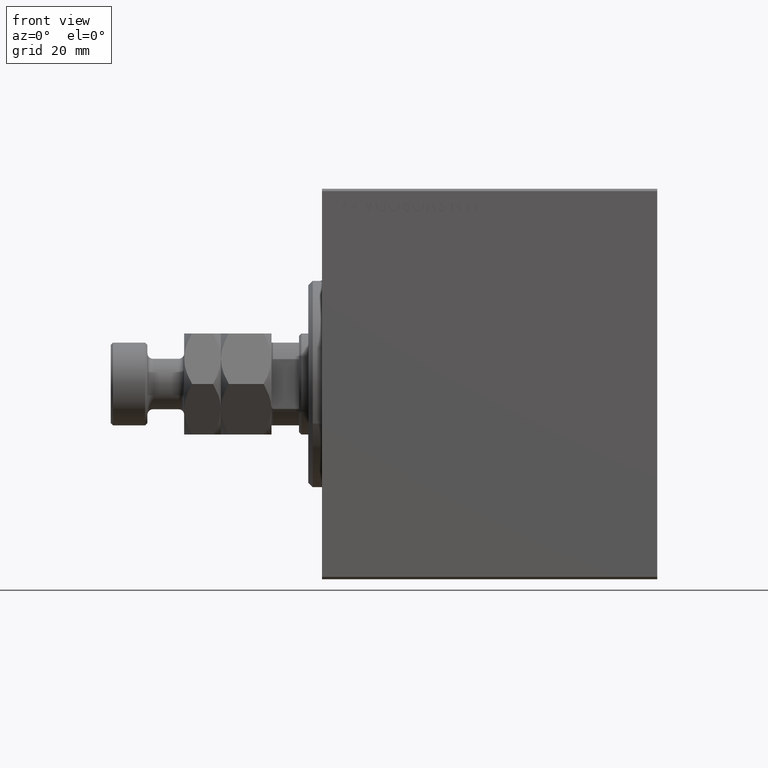
[diagram: clean part render]
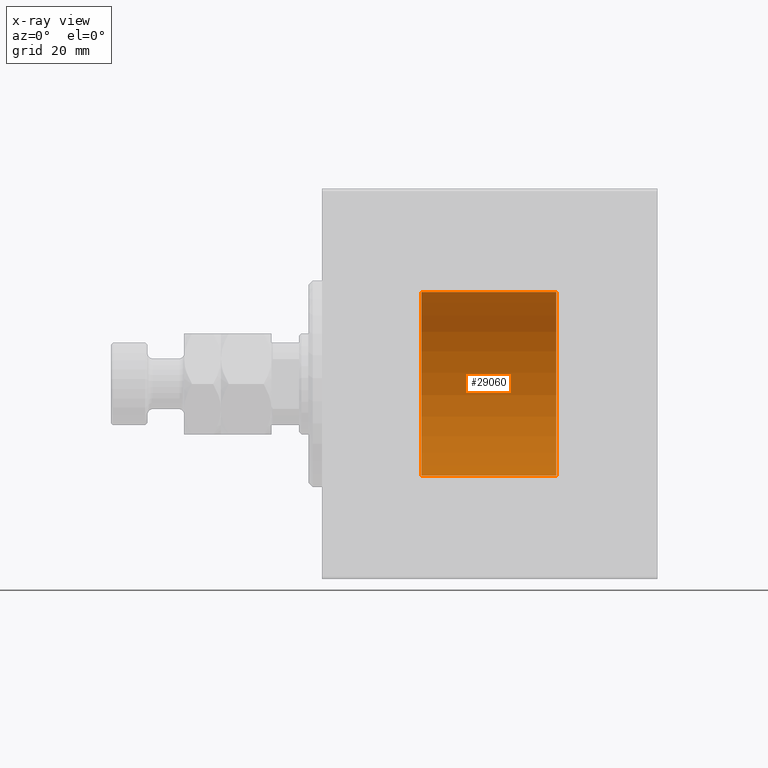
[diagram: x-ray — body ghosted, one internal face saturated and labeled with its STEP entity id]
A machine part, front view, then the same camera in x-ray: the body is ghosted and one INTERNAL B-rep face — a face not visible from any outside direction — is saturated and labeled: STEP entity #29060.
In plain terms, the highlighted cylindrical surface (partial cylindrical patch) has radius 20 mm, axis along (-1, -0, -0).
Its self-contained STEP definition (entity closure, byte-faithful):
#487 = CARTESIAN_POINT ( 'NONE',  ( 21.60000000000000142, 0.000000000000000000, 0.000000000000000000 ) ) ;
#685 = CARTESIAN_POINT ( 'NONE',  ( 51.00000000000000000, 2.449293598294706513E-15, -20.00000000000000000 ) ) ;
#5109 = CARTESIAN_POINT ( 'NONE',  ( 51.00000000000000000, 0.000000000000000000, 0.000000000000000000 ) ) ;
#5329 = CARTESIAN_POINT ( 'NONE',  ( 51.00000000000000000, 2.449293598294706513E-15, -20.00000000000000000 ) ) ;
#5980 = CARTESIAN_POINT ( 'NONE',  ( 21.60000000000000142, 0.000000000000000000, 20.00000000000000000 ) ) ;
#6765 = ORIENTED_EDGE ( 'NONE', *, *, #31878, .F. ) ;
#7360 = DIRECTION ( 'NONE',  ( -1.000000000000000000, -0.000000000000000000, -0.000000000000000000 ) ) ;
#8726 = CYLINDRICAL_SURFACE ( 'NONE', #33543, 20.00000000000000000 ) ;
#9854 = DIRECTION ( 'NONE',  ( 0.000000000000000000, 0.000000000000000000, 1.000000000000000000 ) ) ;
#10135 = VERTEX_POINT ( 'NONE', #25947 ) ;
#10578 = LINE ( 'NONE', #685, #17081 ) ;
#10871 = CIRCLE ( 'NONE', #35076, 20.00000000000000000 ) ;
#11931 = CARTESIAN_POINT ( 'NONE',  ( 51.00000000000000000, 0.000000000000000000, 0.000000000000000000 ) ) ;
#12794 = EDGE_CURVE ( 'NONE', #14581, #10135, #10578, .T. ) ;
#14581 = VERTEX_POINT ( 'NONE', #5329 ) ;
#14772 = EDGE_CURVE ( 'NONE', #23444, #18488, #35614, .T. ) ;
#16114 = DIRECTION ( 'NONE',  ( 0.000000000000000000, 0.000000000000000000, 1.000000000000000000 ) ) ;
#17081 = VECTOR ( 'NONE', #7360, 1000.000000000000000 ) ;
#17640 = DIRECTION ( 'NONE',  ( -1.000000000000000000, 0.000000000000000000, 0.000000000000000000 ) ) ;
#18354 = CARTESIAN_POINT ( 'NONE',  ( 51.00000000000000000, 0.000000000000000000, 20.00000000000000000 ) ) ;
#18488 = VERTEX_POINT ( 'NONE', #5980 ) ;
#19107 = DIRECTION ( 'NONE',  ( -1.000000000000000000, 0.000000000000000000, 0.000000000000000000 ) ) ;
#19851 = ORIENTED_EDGE ( 'NONE', *, *, #14772, .T. ) ;
#20419 = EDGE_CURVE ( 'NONE', #18488, #10135, #39897, .T. ) ;
#22296 = AXIS2_PLACEMENT_3D ( 'NONE', #487, #17640, #9854 ) ;
#22703 = DIRECTION ( 'NONE',  ( 0.000000000000000000, 0.000000000000000000, 1.000000000000000000 ) ) ;
#23444 = VERTEX_POINT ( 'NONE', #18354 ) ;
#25482 = EDGE_LOOP ( 'NONE', ( #42076, #6765, #19851, #39211 ) ) ;
#25730 = CARTESIAN_POINT ( 'NONE',  ( 51.00000000000000000, 0.000000000000000000, 20.00000000000000000 ) ) ;
#25947 = CARTESIAN_POINT ( 'NONE',  ( 21.60000000000000142, 2.449293598294706513E-15, -20.00000000000000000 ) ) ;
#26150 = FACE_OUTER_BOUND ( 'NONE', #25482, .T. ) ;
#29060 = ADVANCED_FACE ( 'NONE', ( #26150 ), #8726, .F. ) ;
#31878 = EDGE_CURVE ( 'NONE', #23444, #14581, #10871, .T. ) ;
#32396 = DIRECTION ( 'NONE',  ( -1.000000000000000000, -0.000000000000000000, -0.000000000000000000 ) ) ;
#33543 = AXIS2_PLACEMENT_3D ( 'NONE', #11931, #44058, #22703 ) ;
#35076 = AXIS2_PLACEMENT_3D ( 'NONE', #5109, #19107, #16114 ) ;
#35436 = VECTOR ( 'NONE', #32396, 1000.000000000000000 ) ;
#35614 = LINE ( 'NONE', #25730, #35436 ) ;
#39211 = ORIENTED_EDGE ( 'NONE', *, *, #20419, .T. ) ;
#39897 = CIRCLE ( 'NONE', #22296, 20.00000000000000000 ) ;
#42076 = ORIENTED_EDGE ( 'NONE', *, *, #12794, .F. ) ;
#44058 = DIRECTION ( 'NONE',  ( -1.000000000000000000, -0.000000000000000000, -0.000000000000000000 ) ) ;